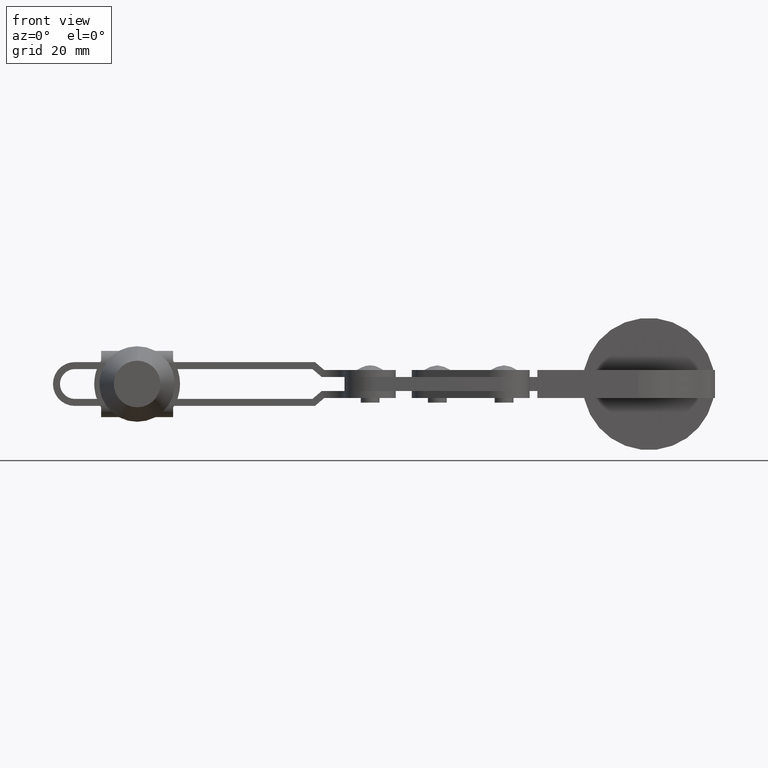
[diagram: clean part render]
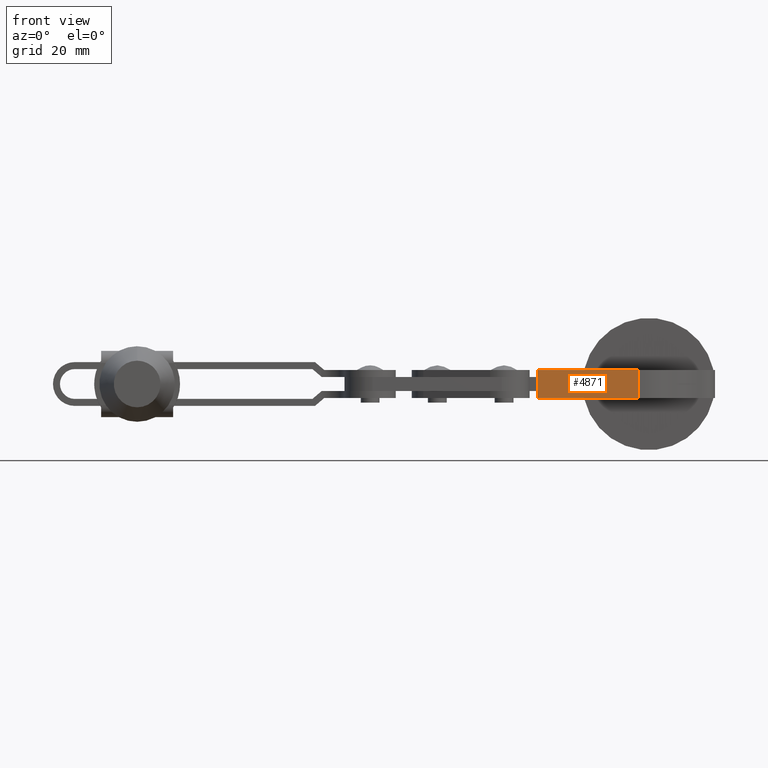
[diagram: same view with one face highlighted and labeled with its STEP entity id]
A machine part, front view. The second image highlights one B-rep face of the part: STEP entity #4871.
In plain terms, the highlighted planar face has unit normal (-0.0008, 1, 0).
Its self-contained STEP definition (entity closure, byte-faithful):
#43 = LINE ( 'NONE', #1050, #5780 ) ;
#358 = EDGE_CURVE ( 'NONE', #976, #4253, #2445, .T. ) ;
#486 = AXIS2_PLACEMENT_3D ( 'NONE', #6881, #4751, #8254 ) ;
#643 = DIRECTION ( 'NONE',  ( -0.0000000000000000000, -0.0000000000000000000, -1.000000000000000000 ) ) ;
#976 = VERTEX_POINT ( 'NONE', #6595 ) ;
#1050 = CARTESIAN_POINT ( 'NONE',  ( 1.646854916602887000, 15.70000000000000600, 3.000000000000000000 ) ) ;
#1202 = CARTESIAN_POINT ( 'NONE',  ( 23.29404057382338800, 15.70000000000000600, 3.000000000000000000 ) ) ;
#1309 = CARTESIAN_POINT ( 'NONE',  ( 1.646854916602887000, 15.70000000000000600, 3.000000000000000000 ) ) ;
#1903 = PLANE ( 'NONE',  #486 ) ;
#1927 = CARTESIAN_POINT ( 'NONE',  ( 1.646854916602887000, 15.70000000000000600, -3.000000000000000000 ) ) ;
#2211 = VERTEX_POINT ( 'NONE', #3546 ) ;
#2445 = LINE ( 'NONE', #1309, #3108 ) ;
#2724 = EDGE_CURVE ( 'NONE', #976, #5403, #43, .T. ) ;
#2789 = CARTESIAN_POINT ( 'NONE',  ( 1.646854916602887000, 15.70000000000000600, -3.000000000000000000 ) ) ;
#3108 = VECTOR ( 'NONE', #7218, 1000.000000000000000 ) ;
#3546 = CARTESIAN_POINT ( 'NONE',  ( 23.29404057382338800, 15.70000000000000600, -3.000000000000000000 ) ) ;
#3630 = ORIENTED_EDGE ( 'NONE', *, *, #4361, .T. ) ;
#4066 = ORIENTED_EDGE ( 'NONE', *, *, #2724, .F. ) ;
#4122 = EDGE_CURVE ( 'NONE', #5403, #2211, #8981, .T. ) ;
#4253 = VERTEX_POINT ( 'NONE', #1927 ) ;
#4361 = EDGE_CURVE ( 'NONE', #4253, #2211, #5679, .T. ) ;
#4751 = DIRECTION ( 'NONE',  ( 0.0000000000000000000, 1.000000000000000000, 0.0000000000000000000 ) ) ;
#4871 = ADVANCED_FACE ( 'NONE', ( #8745 ), #1903, .F. ) ;
#5403 = VERTEX_POINT ( 'NONE', #6865 ) ;
#5679 = LINE ( 'NONE', #2789, #9200 ) ;
#5780 = VECTOR ( 'NONE', #7207, 1000.000000000000000 ) ;
#5838 = ORIENTED_EDGE ( 'NONE', *, *, #4122, .F. ) ;
#6595 = CARTESIAN_POINT ( 'NONE',  ( 1.646854916602887000, 15.70000000000000600, 3.000000000000000000 ) ) ;
#6740 = DIRECTION ( 'NONE',  ( 1.000000000000000000, 0.0000000000000000000, 0.0000000000000000000 ) ) ;
#6865 = CARTESIAN_POINT ( 'NONE',  ( 23.29404057382338800, 15.70000000000000600, 3.000000000000000000 ) ) ;
#6881 = CARTESIAN_POINT ( 'NONE',  ( 1.646854916602887000, 15.70000000000000600, 3.000000000000000000 ) ) ;
#7207 = DIRECTION ( 'NONE',  ( 1.000000000000000000, 0.0000000000000000000, 0.0000000000000000000 ) ) ;
#7218 = DIRECTION ( 'NONE',  ( -0.0000000000000000000, -0.0000000000000000000, -1.000000000000000000 ) ) ;
#7323 = VECTOR ( 'NONE', #643, 1000.000000000000000 ) ;
#8234 = EDGE_LOOP ( 'NONE', ( #3630, #5838, #4066, #8505 ) ) ;
#8254 = DIRECTION ( 'NONE',  ( 0.0000000000000000000, -0.0000000000000000000, 1.000000000000000000 ) ) ;
#8505 = ORIENTED_EDGE ( 'NONE', *, *, #358, .T. ) ;
#8745 = FACE_OUTER_BOUND ( 'NONE', #8234, .T. ) ;
#8981 = LINE ( 'NONE', #1202, #7323 ) ;
#9200 = VECTOR ( 'NONE', #6740, 1000.000000000000000 ) ;